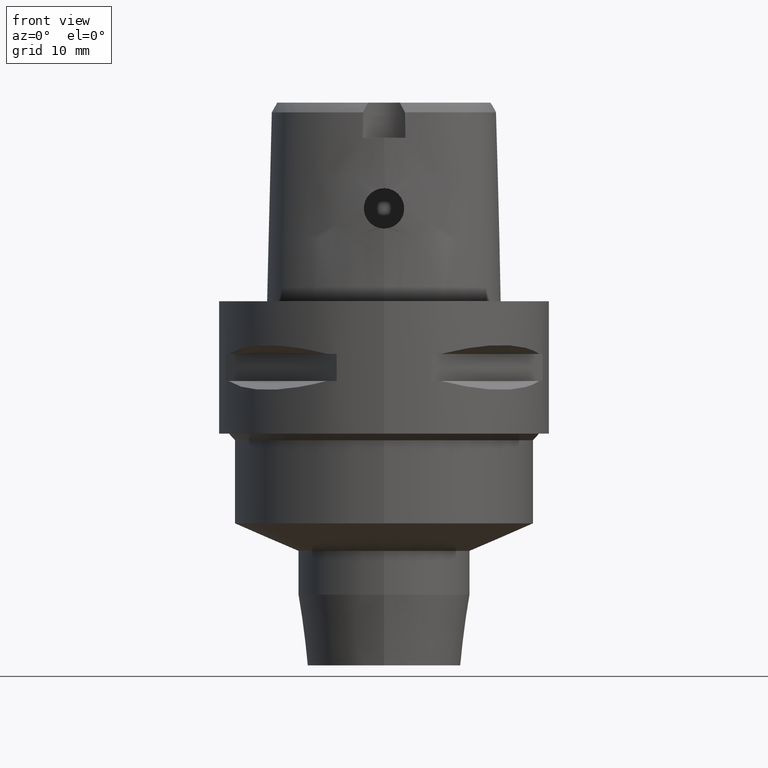
[diagram: clean part render]
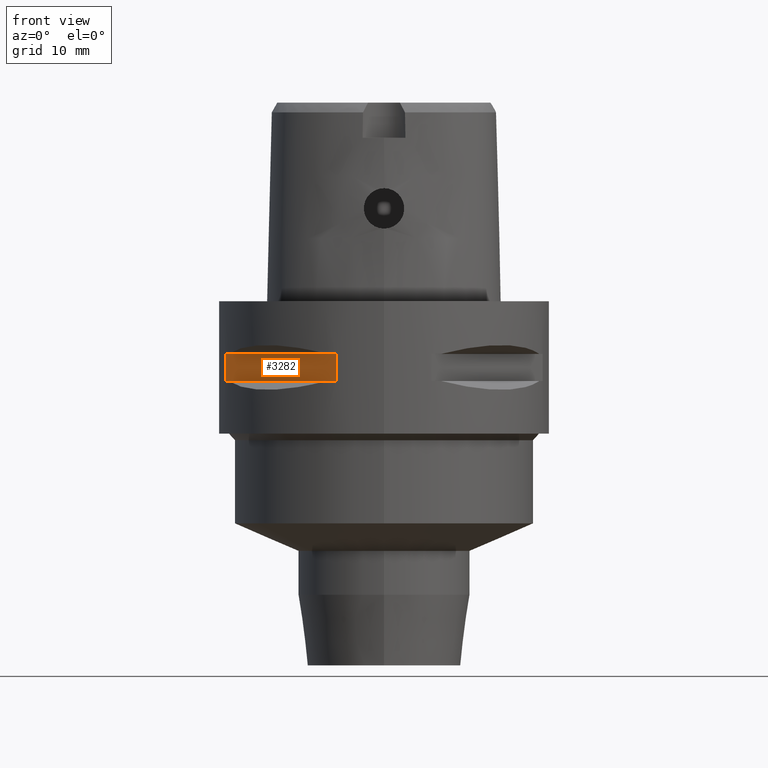
[diagram: same view with one face highlighted and labeled with its STEP entity id]
A machine part, front view. The second image highlights one B-rep face of the part: STEP entity #3282.
In plain terms, the highlighted planar face has unit normal (0.7071, 0.7071, 0).
Its self-contained STEP definition (entity closure, byte-faithful):
#426=DIRECTION('',(0.E0,0.E0,-1.E0));
#427=VECTOR('',#426,4.1E0);
#428=CARTESIAN_POINT('',(-2.395277699798E1,-7.159921374231E0,-7.95E0));
#429=LINE('',#428,#427);
#444=DIRECTION('',(0.E0,0.E0,1.E0));
#445=VECTOR('',#444,4.1E0);
#446=CARTESIAN_POINT('',(-7.159921374231E0,-2.395277699798E1,-1.205E1));
#447=LINE('',#446,#445);
#1460=DIRECTION('',(7.071067811865E-1,-7.071067811865E-1,0.E0));
#1461=VECTOR('',#1460,2.374868417407E1);
#1462=CARTESIAN_POINT('',(-2.395277699798E1,-7.159921374231E0,-7.95E0));
#1463=LINE('',#1462,#1461);
#1483=DIRECTION('',(7.071067811865E-1,-7.071067811865E-1,0.E0));
#1484=VECTOR('',#1483,2.374868417407E1);
#1485=CARTESIAN_POINT('',(-2.395277699798E1,-7.159921374231E0,-1.205E1));
#1486=LINE('',#1485,#1484);
#1542=CARTESIAN_POINT('',(-2.395277699798E1,-7.159921374235E0,-7.95E0));
#1543=VERTEX_POINT('',#1542);
#1544=CARTESIAN_POINT('',(-2.395277699798E1,-7.159921374231E0,-1.205E1));
#1545=VERTEX_POINT('',#1544);
#1549=CARTESIAN_POINT('',(-7.159921374235E0,-2.395277699798E1,-1.205E1));
#1550=VERTEX_POINT('',#1549);
#1551=CARTESIAN_POINT('',(-7.159921374231E0,-2.395277699798E1,-7.95E0));
#1552=VERTEX_POINT('',#1551);
#3270=CARTESIAN_POINT('',(-4.949747468306E0,-2.616295090390E1,-7.95E0));
#3271=DIRECTION('',(7.071067811865E-1,7.071067811865E-1,0.E0));
#3272=DIRECTION('',(0.E0,0.E0,-1.E0));
#3273=AXIS2_PLACEMENT_3D('',#3270,#3271,#3272);
#3274=PLANE('',#3273);
#3275=ORIENTED_EDGE('',*,*,#2341,.F.);
#3277=ORIENTED_EDGE('',*,*,#3276,.F.);
#3278=ORIENTED_EDGE('',*,*,#2333,.F.);
#3279=ORIENTED_EDGE('',*,*,#3263,.T.);
#3280=EDGE_LOOP('',(#3275,#3277,#3278,#3279));
#3281=FACE_OUTER_BOUND('',#3280,.F.);
#2333=EDGE_CURVE('',#1543,#1545,#429,.T.);
#2341=EDGE_CURVE('',#1550,#1552,#447,.T.);
#3263=EDGE_CURVE('',#1543,#1552,#1463,.T.);
#3276=EDGE_CURVE('',#1545,#1550,#1486,.T.);
#3282=ADVANCED_FACE('',(#3281),#3274,.F.);